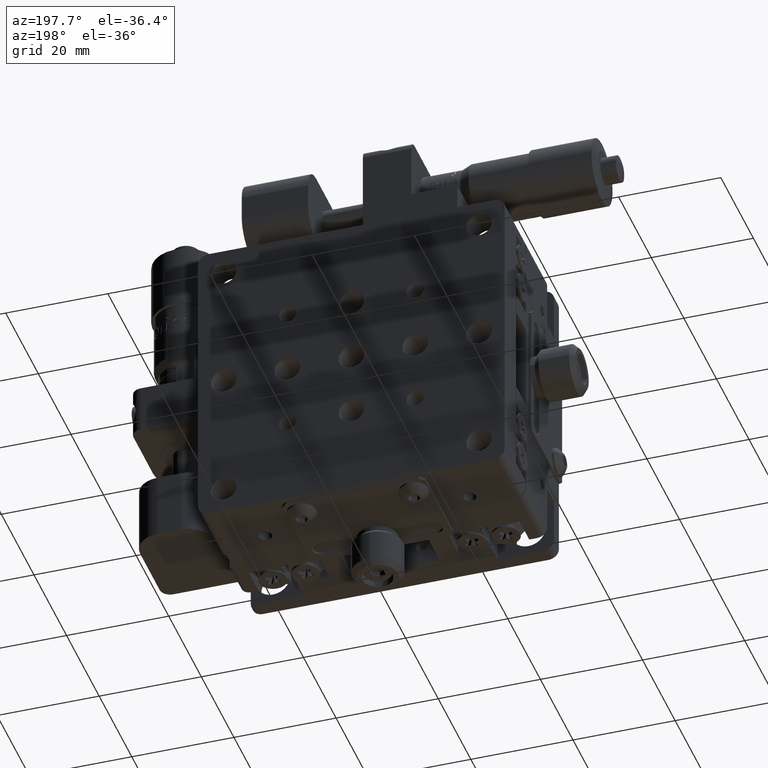
[diagram: clean part render]
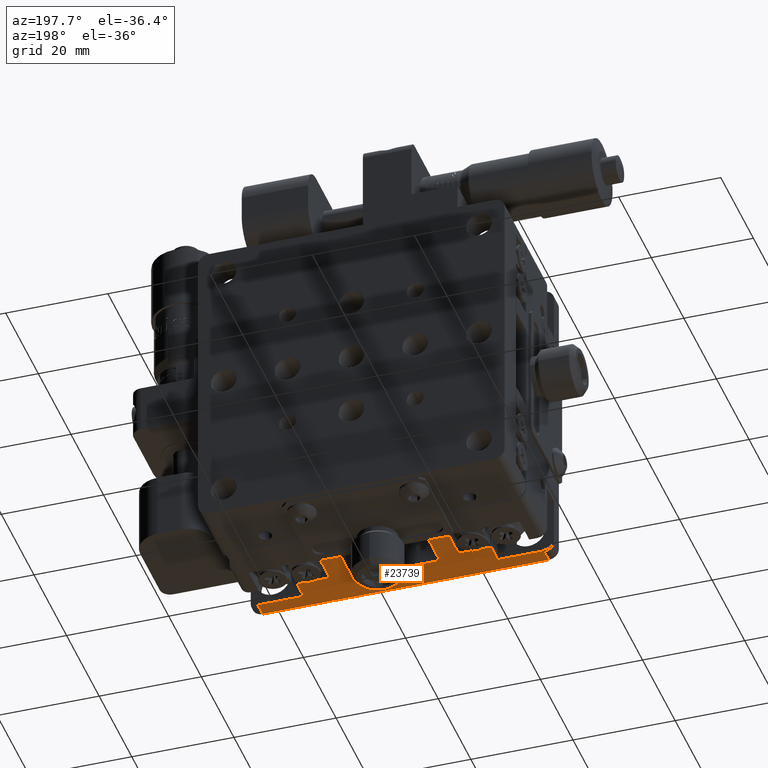
[diagram: same view with one face highlighted and labeled with its STEP entity id]
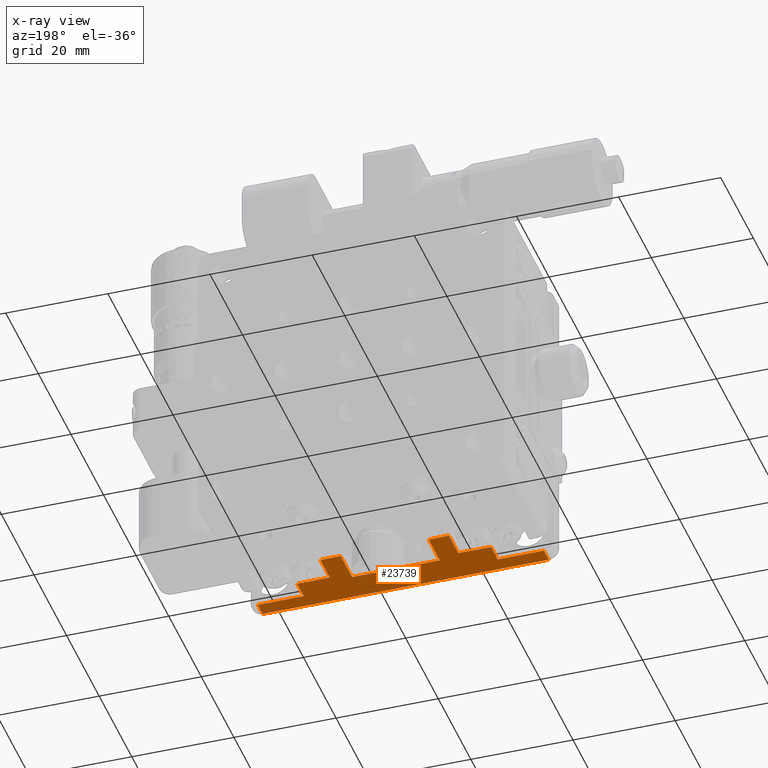
[diagram: x-ray of the same camera — body ghosted, the highlighted face saturated]
A machine part, auxiliary view. The second image highlights one B-rep face of the part: STEP entity #23739.
The next image is the same camera in x-ray: the body ghosted, the highlighted face saturated — about 7% of this face is hidden behind the body in this view.
In plain terms, the highlighted planar face has unit normal (0, 0, -1).
Its self-contained STEP definition (entity closure, byte-faithful):
#4 = EDGE_CURVE ( 'NONE', #3375, #70200, #12717, .T. ) ;
#342 = ORIENTED_EDGE ( 'NONE', *, *, #13951, .F. ) ;
#961 = EDGE_CURVE ( 'NONE', #24385, #59310, #7218, .T. ) ;
#1302 = CARTESIAN_POINT ( 'NONE',  ( -18.99999999999998900, 7.000000000000000000, -30.00000000000000000 ) ) ;
#2473 = ORIENTED_EDGE ( 'NONE', *, *, #2596, .T. ) ;
#2512 = ORIENTED_EDGE ( 'NONE', *, *, #47367, .F. ) ;
#2596 = EDGE_CURVE ( 'NONE', #47152, #65965, #7854, .T. ) ;
#2909 = DIRECTION ( 'NONE',  ( 0.0000000000000000000, -1.000000000000000000, 0.0000000000000000000 ) ) ;
#2983 = VECTOR ( 'NONE', #28313, 1000.000000000000000 ) ;
#3073 = CARTESIAN_POINT ( 'NONE',  ( -27.99999999999999600, 0.0000000000000000000, -30.00000000000000000 ) ) ;
#3375 = VERTEX_POINT ( 'NONE', #51210 ) ;
#4206 = VERTEX_POINT ( 'NONE', #48002 ) ;
#4544 = VERTEX_POINT ( 'NONE', #61648 ) ;
#4719 = VERTEX_POINT ( 'NONE', #24438 ) ;
#4852 = PLANE ( 'NONE',  #64027 ) ;
#4931 = ORIENTED_EDGE ( 'NONE', *, *, #53955, .F. ) ;
#5135 = DIRECTION ( 'NONE',  ( -1.000000000000000000, -0.0000000000000000000, -0.0000000000000000000 ) ) ;
#5153 = VECTOR ( 'NONE', #65920, 1000.000000000000000 ) ;
#6497 = EDGE_CURVE ( 'NONE', #61675, #57074, #64733, .T. ) ;
#6587 = ORIENTED_EDGE ( 'NONE', *, *, #15698, .F. ) ;
#7218 = LINE ( 'NONE', #27937, #20355 ) ;
#7854 = LINE ( 'NONE', #31698, #65617 ) ;
#8126 = VECTOR ( 'NONE', #65259, 1000.000000000000000 ) ;
#8410 = LINE ( 'NONE', #55734, #51291 ) ;
#8680 = CARTESIAN_POINT ( 'NONE',  ( 18.99999999999998900, 7.000000000000000000, -30.00000000000000000 ) ) ;
#8740 = CARTESIAN_POINT ( 'NONE',  ( 18.69999999999999900, 7.099999999999999600, -30.00000000000000000 ) ) ;
#9703 = ORIENTED_EDGE ( 'NONE', *, *, #43304, .F. ) ;
#9809 = CARTESIAN_POINT ( 'NONE',  ( 8.599999999999999600, 12.90000000000000000, -30.00000000000000000 ) ) ;
#10925 = VECTOR ( 'NONE', #39537, 1000.000000000000000 ) ;
#11648 = CARTESIAN_POINT ( 'NONE',  ( 12.60000000000000000, 7.099999999999999600, -30.00000000000000000 ) ) ;
#12717 = LINE ( 'NONE', #60167, #70466 ) ;
#13593 = ORIENTED_EDGE ( 'NONE', *, *, #39157, .F. ) ;
#13768 = ORIENTED_EDGE ( 'NONE', *, *, #961, .F. ) ;
#13869 = DIRECTION ( 'NONE',  ( -1.000000000000000000, -0.0000000000000000000, -0.0000000000000000000 ) ) ;
#13951 = EDGE_CURVE ( 'NONE', #69333, #4544, #53799, .T. ) ;
#14081 = EDGE_CURVE ( 'NONE', #47152, #66714, #62507, .T. ) ;
#14358 = DIRECTION ( 'NONE',  ( -0.0000000000000000000, 1.000000000000000000, -0.0000000000000000000 ) ) ;
#14421 = LINE ( 'NONE', #53428, #72152 ) ;
#15567 = VECTOR ( 'NONE', #36032, 1000.000000000000000 ) ;
#15698 = EDGE_CURVE ( 'NONE', #4719, #4206, #61746, .T. ) ;
#16947 = EDGE_CURVE ( 'NONE', #57074, #33391, #37803, .T. ) ;
#17631 = CARTESIAN_POINT ( 'NONE',  ( 8.599999999999999600, 12.90000000000000000, -30.00000000000000000 ) ) ;
#18368 = VECTOR ( 'NONE', #51404, 1000.000000000000000 ) ;
#18610 = VERTEX_POINT ( 'NONE', #49356 ) ;
#18750 = ORIENTED_EDGE ( 'NONE', *, *, #20064, .F. ) ;
#19241 = VECTOR ( 'NONE', #51203, 1000.000000000000000 ) ;
#19829 = ORIENTED_EDGE ( 'NONE', *, *, #39247, .T. ) ;
#20064 = EDGE_CURVE ( 'NONE', #4544, #3375, #67631, .T. ) ;
#20355 = VECTOR ( 'NONE', #2909, 1000.000000000000000 ) ;
#20672 = DIRECTION ( 'NONE',  ( -0.0000000000000000000, 1.000000000000000000, -0.0000000000000000000 ) ) ;
#21648 = LINE ( 'NONE', #24929, #66273 ) ;
#22661 = DIRECTION ( 'NONE',  ( 0.0000000000000000000, 0.0000000000000000000, -1.000000000000000000 ) ) ;
#22680 = CARTESIAN_POINT ( 'NONE',  ( -30.00000000000000000, 0.0000000000000000000, -30.00000000000000000 ) ) ;
#22746 = ORIENTED_EDGE ( 'NONE', *, *, #71273, .T. ) ;
#23739 = ADVANCED_FACE ( 'NONE', ( #29899 ), #4852, .T. ) ;
#24001 = CARTESIAN_POINT ( 'NONE',  ( -18.69999999999999900, 7.099999999999999600, -30.00000000000000000 ) ) ;
#24379 = CARTESIAN_POINT ( 'NONE',  ( -27.99999999999999600, 3.000000000000000000, -30.00000000000000000 ) ) ;
#24385 = VERTEX_POINT ( 'NONE', #1302 ) ;
#24438 = CARTESIAN_POINT ( 'NONE',  ( 18.99999999999998900, 3.000000000000000000, -30.00000000000000000 ) ) ;
#24929 = CARTESIAN_POINT ( 'NONE',  ( 12.60000000000000000, 7.099999999999999600, -30.00000000000000000 ) ) ;
#25066 = CARTESIAN_POINT ( 'NONE',  ( -18.99999999999998900, 3.000000000000000000, -30.00000000000000000 ) ) ;
#26079 = EDGE_CURVE ( 'NONE', #38368, #61675, #21648, .T. ) ;
#26138 = CARTESIAN_POINT ( 'NONE',  ( -8.599999999999999600, 12.90000000000000000, -30.00000000000000000 ) ) ;
#26456 = LINE ( 'NONE', #17631, #56187 ) ;
#27856 = DIRECTION ( 'NONE',  ( 0.0000000000000000000, -1.000000000000000000, 0.0000000000000000000 ) ) ;
#27937 = CARTESIAN_POINT ( 'NONE',  ( -18.99999999999998900, 7.000000000000000000, -30.00000000000000000 ) ) ;
#28313 = DIRECTION ( 'NONE',  ( 1.000000000000000000, 0.0000000000000000000, 0.0000000000000000000 ) ) ;
#29147 = CARTESIAN_POINT ( 'NONE',  ( 12.60000000000000000, 12.90000000000000000, -30.00000000000000000 ) ) ;
#29374 = DIRECTION ( 'NONE',  ( 0.0000000000000000000, -1.000000000000000000, 0.0000000000000000000 ) ) ;
#29430 = VECTOR ( 'NONE', #72075, 1000.000000000000000 ) ;
#29899 = FACE_OUTER_BOUND ( 'NONE', #64071, .T. ) ;
#30863 = VERTEX_POINT ( 'NONE', #41049 ) ;
#31124 = ORIENTED_EDGE ( 'NONE', *, *, #57463, .F. ) ;
#31198 = LINE ( 'NONE', #66461, #29430 ) ;
#31356 = CARTESIAN_POINT ( 'NONE',  ( -18.69999999999999900, 7.000000000000000000, -30.00000000000000000 ) ) ;
#31623 = CARTESIAN_POINT ( 'NONE',  ( 27.99999999999999600, 0.0000000000000000000, -30.00000000000000000 ) ) ;
#31698 = CARTESIAN_POINT ( 'NONE',  ( -27.99999999999999600, 3.000000000000000000, -30.00000000000000000 ) ) ;
#32246 = EDGE_CURVE ( 'NONE', #70200, #45468, #8410, .T. ) ;
#32365 = CARTESIAN_POINT ( 'NONE',  ( -18.69999999999999900, 7.099999999999999600, -30.00000000000000000 ) ) ;
#33391 = VERTEX_POINT ( 'NONE', #70948 ) ;
#33903 = CARTESIAN_POINT ( 'NONE',  ( -8.599999999999999600, 6.000000000000000000, -30.00000000000000000 ) ) ;
#35779 = CARTESIAN_POINT ( 'NONE',  ( -30.00000000000000000, 3.000000000000000000, -30.00000000000000000 ) ) ;
#36032 = DIRECTION ( 'NONE',  ( 1.000000000000000000, -0.0000000000000000000, 0.0000000000000000000 ) ) ;
#36154 = CARTESIAN_POINT ( 'NONE',  ( 12.60000000000000000, 12.90000000000000000, -30.00000000000000000 ) ) ;
#36194 = VECTOR ( 'NONE', #14358, 1000.000000000000000 ) ;
#36232 = DIRECTION ( 'NONE',  ( -1.000000000000000000, -0.0000000000000000000, -0.0000000000000000000 ) ) ;
#36456 = EDGE_CURVE ( 'NONE', #33391, #69333, #26456, .T. ) ;
#36637 = LINE ( 'NONE', #31623, #66335 ) ;
#36682 = LINE ( 'NONE', #71289, #5153 ) ;
#36833 = DIRECTION ( 'NONE',  ( -1.000000000000000000, -0.0000000000000000000, -0.0000000000000000000 ) ) ;
#37775 = VERTEX_POINT ( 'NONE', #32365 ) ;
#37803 = LINE ( 'NONE', #9809, #44774 ) ;
#37932 = LINE ( 'NONE', #8740, #36194 ) ;
#38368 = VERTEX_POINT ( 'NONE', #56438 ) ;
#39157 = EDGE_CURVE ( 'NONE', #37775, #68146, #54085, .T. ) ;
#39247 = EDGE_CURVE ( 'NONE', #65965, #59310, #58418, .T. ) ;
#39537 = DIRECTION ( 'NONE',  ( -1.000000000000000000, -0.0000000000000000000, -0.0000000000000000000 ) ) ;
#41049 = CARTESIAN_POINT ( 'NONE',  ( 18.69999999999999900, 7.000000000000000000, -30.00000000000000000 ) ) ;
#43304 = EDGE_CURVE ( 'NONE', #45468, #37775, #14421, .T. ) ;
#44713 = CARTESIAN_POINT ( 'NONE',  ( 27.99999999999999600, 0.0000000000000000000, -30.00000000000000000 ) ) ;
#44774 = VECTOR ( 'NONE', #5135, 1000.000000000000000 ) ;
#45468 = VERTEX_POINT ( 'NONE', #46131 ) ;
#45583 = CARTESIAN_POINT ( 'NONE',  ( -30.00000000000000000, 7.000000000000000000, -30.00000000000000000 ) ) ;
#46131 = CARTESIAN_POINT ( 'NONE',  ( -12.60000000000000000, 7.099999999999999600, -30.00000000000000000 ) ) ;
#46854 = VECTOR ( 'NONE', #59049, 1000.000000000000000 ) ;
#47152 = VERTEX_POINT ( 'NONE', #3073 ) ;
#47367 = EDGE_CURVE ( 'NONE', #4206, #30863, #36682, .T. ) ;
#48002 = CARTESIAN_POINT ( 'NONE',  ( 18.99999999999998900, 7.000000000000000000, -30.00000000000000000 ) ) ;
#48530 = CARTESIAN_POINT ( 'NONE',  ( 8.599999999999999600, 6.000000000000000000, -30.00000000000000000 ) ) ;
#48982 = LINE ( 'NONE', #45583, #19241 ) ;
#49356 = CARTESIAN_POINT ( 'NONE',  ( 27.99999999999999600, 3.000000000000000000, -30.00000000000000000 ) ) ;
#50943 = ORIENTED_EDGE ( 'NONE', *, *, #4, .F. ) ;
#51203 = DIRECTION ( 'NONE',  ( -1.000000000000000000, -0.0000000000000000000, -0.0000000000000000000 ) ) ;
#51210 = CARTESIAN_POINT ( 'NONE',  ( -8.599999999999999600, 12.90000000000000000, -30.00000000000000000 ) ) ;
#51291 = VECTOR ( 'NONE', #27856, 1000.000000000000000 ) ;
#51404 = DIRECTION ( 'NONE',  ( -0.0000000000000000000, 1.000000000000000000, -0.0000000000000000000 ) ) ;
#52319 = VECTOR ( 'NONE', #29374, 1000.000000000000000 ) ;
#53428 = CARTESIAN_POINT ( 'NONE',  ( -18.69999999999999900, 7.099999999999999600, -30.00000000000000000 ) ) ;
#53536 = CARTESIAN_POINT ( 'NONE',  ( -12.60000000000000000, 12.90000000000000000, -30.00000000000000000 ) ) ;
#53799 = LINE ( 'NONE', #33903, #10925 ) ;
#53955 = EDGE_CURVE ( 'NONE', #30863, #38368, #37932, .T. ) ;
#54085 = LINE ( 'NONE', #24001, #52319 ) ;
#54196 = ORIENTED_EDGE ( 'NONE', *, *, #36456, .F. ) ;
#55734 = CARTESIAN_POINT ( 'NONE',  ( -12.60000000000000000, 12.90000000000000000, -30.00000000000000000 ) ) ;
#56161 = CARTESIAN_POINT ( 'NONE',  ( -30.00000000000000000, 7.000000000000000000, -30.00000000000000000 ) ) ;
#56187 = VECTOR ( 'NONE', #56478, 1000.000000000000000 ) ;
#56211 = ORIENTED_EDGE ( 'NONE', *, *, #71799, .T. ) ;
#56438 = CARTESIAN_POINT ( 'NONE',  ( 18.69999999999999900, 7.099999999999999600, -30.00000000000000000 ) ) ;
#56478 = DIRECTION ( 'NONE',  ( 0.0000000000000000000, -1.000000000000000000, 0.0000000000000000000 ) ) ;
#57074 = VERTEX_POINT ( 'NONE', #36154 ) ;
#57236 = ORIENTED_EDGE ( 'NONE', *, *, #6497, .F. ) ;
#57463 = EDGE_CURVE ( 'NONE', #68146, #24385, #48982, .T. ) ;
#58330 = ORIENTED_EDGE ( 'NONE', *, *, #26079, .F. ) ;
#58418 = LINE ( 'NONE', #35779, #15567 ) ;
#59049 = DIRECTION ( 'NONE',  ( 0.0000000000000000000, 1.000000000000000000, 0.0000000000000000000 ) ) ;
#59310 = VERTEX_POINT ( 'NONE', #25066 ) ;
#59340 = ORIENTED_EDGE ( 'NONE', *, *, #14081, .F. ) ;
#60167 = CARTESIAN_POINT ( 'NONE',  ( -12.60000000000000000, 12.90000000000000000, -30.00000000000000000 ) ) ;
#61648 = CARTESIAN_POINT ( 'NONE',  ( -8.599999999999999600, 6.000000000000000000, -30.00000000000000000 ) ) ;
#61675 = VERTEX_POINT ( 'NONE', #11648 ) ;
#61746 = LINE ( 'NONE', #8680, #46854 ) ;
#61786 = DIRECTION ( 'NONE',  ( -1.000000000000000000, 0.0000000000000000000, -0.0000000000000000000 ) ) ;
#62507 = LINE ( 'NONE', #22680, #2983 ) ;
#64027 = AXIS2_PLACEMENT_3D ( 'NONE', #56161, #22661, #61786 ) ;
#64071 = EDGE_LOOP ( 'NONE', ( #59340, #2473, #19829, #13768, #31124, #13593, #9703, #67716, #50943, #18750, #342, #54196, #66854, #57236, #58330, #4931, #2512, #6587, #56211, #22746 ) ) ;
#64733 = LINE ( 'NONE', #29147, #18368 ) ;
#65259 = DIRECTION ( 'NONE',  ( -0.0000000000000000000, 1.000000000000000000, -0.0000000000000000000 ) ) ;
#65617 = VECTOR ( 'NONE', #20672, 1000.000000000000000 ) ;
#65920 = DIRECTION ( 'NONE',  ( -1.000000000000000000, -0.0000000000000000000, -0.0000000000000000000 ) ) ;
#65965 = VERTEX_POINT ( 'NONE', #24379 ) ;
#66273 = VECTOR ( 'NONE', #36232, 1000.000000000000000 ) ;
#66335 = VECTOR ( 'NONE', #70714, 1000.000000000000000 ) ;
#66461 = CARTESIAN_POINT ( 'NONE',  ( -30.00000000000000000, 3.000000000000000000, -30.00000000000000000 ) ) ;
#66714 = VERTEX_POINT ( 'NONE', #44713 ) ;
#66854 = ORIENTED_EDGE ( 'NONE', *, *, #16947, .F. ) ;
#67631 = LINE ( 'NONE', #26138, #8126 ) ;
#67716 = ORIENTED_EDGE ( 'NONE', *, *, #32246, .F. ) ;
#68146 = VERTEX_POINT ( 'NONE', #31356 ) ;
#69333 = VERTEX_POINT ( 'NONE', #48530 ) ;
#70200 = VERTEX_POINT ( 'NONE', #53536 ) ;
#70466 = VECTOR ( 'NONE', #13869, 1000.000000000000000 ) ;
#70714 = DIRECTION ( 'NONE',  ( 0.0000000000000000000, -1.000000000000000000, -0.0000000000000000000 ) ) ;
#70948 = CARTESIAN_POINT ( 'NONE',  ( 8.599999999999999600, 12.90000000000000000, -30.00000000000000000 ) ) ;
#71273 = EDGE_CURVE ( 'NONE', #18610, #66714, #36637, .T. ) ;
#71289 = CARTESIAN_POINT ( 'NONE',  ( 18.69999999999999900, 7.000000000000000000, -30.00000000000000000 ) ) ;
#71799 = EDGE_CURVE ( 'NONE', #4719, #18610, #31198, .T. ) ;
#72075 = DIRECTION ( 'NONE',  ( 1.000000000000000000, -0.0000000000000000000, 0.0000000000000000000 ) ) ;
#72152 = VECTOR ( 'NONE', #36833, 1000.000000000000000 ) ;